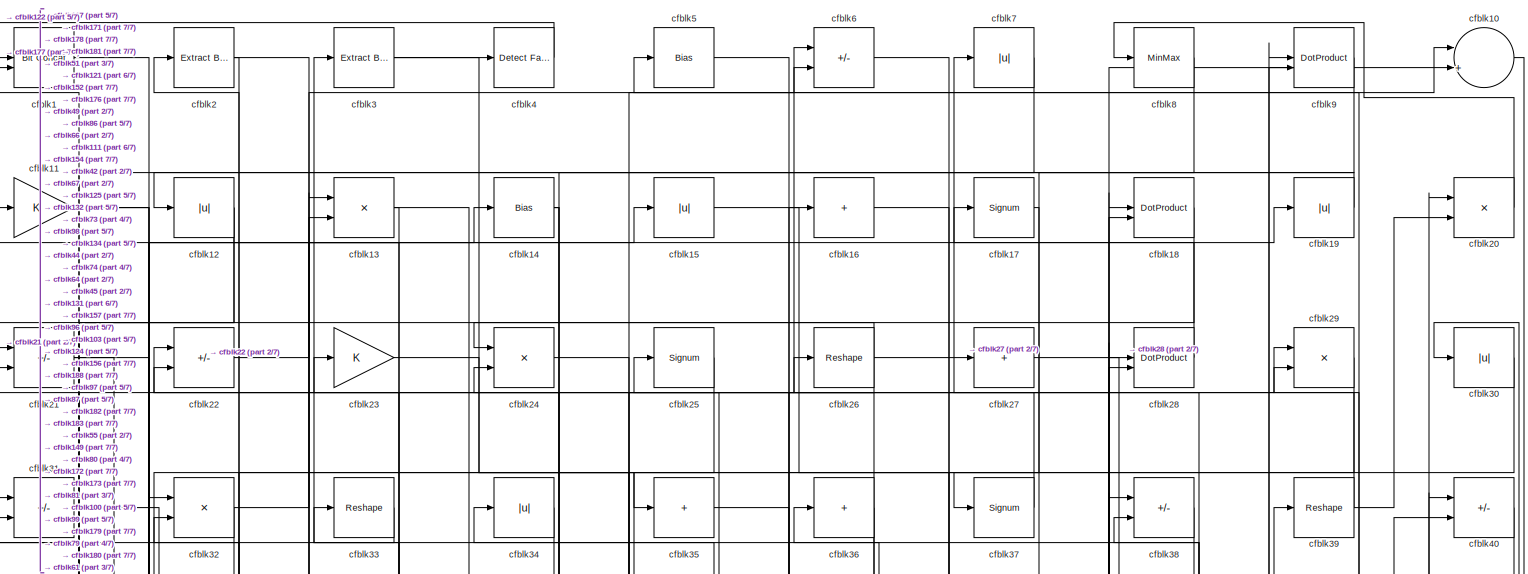
[diagram: root canvas - part 1/7, full width, top band]
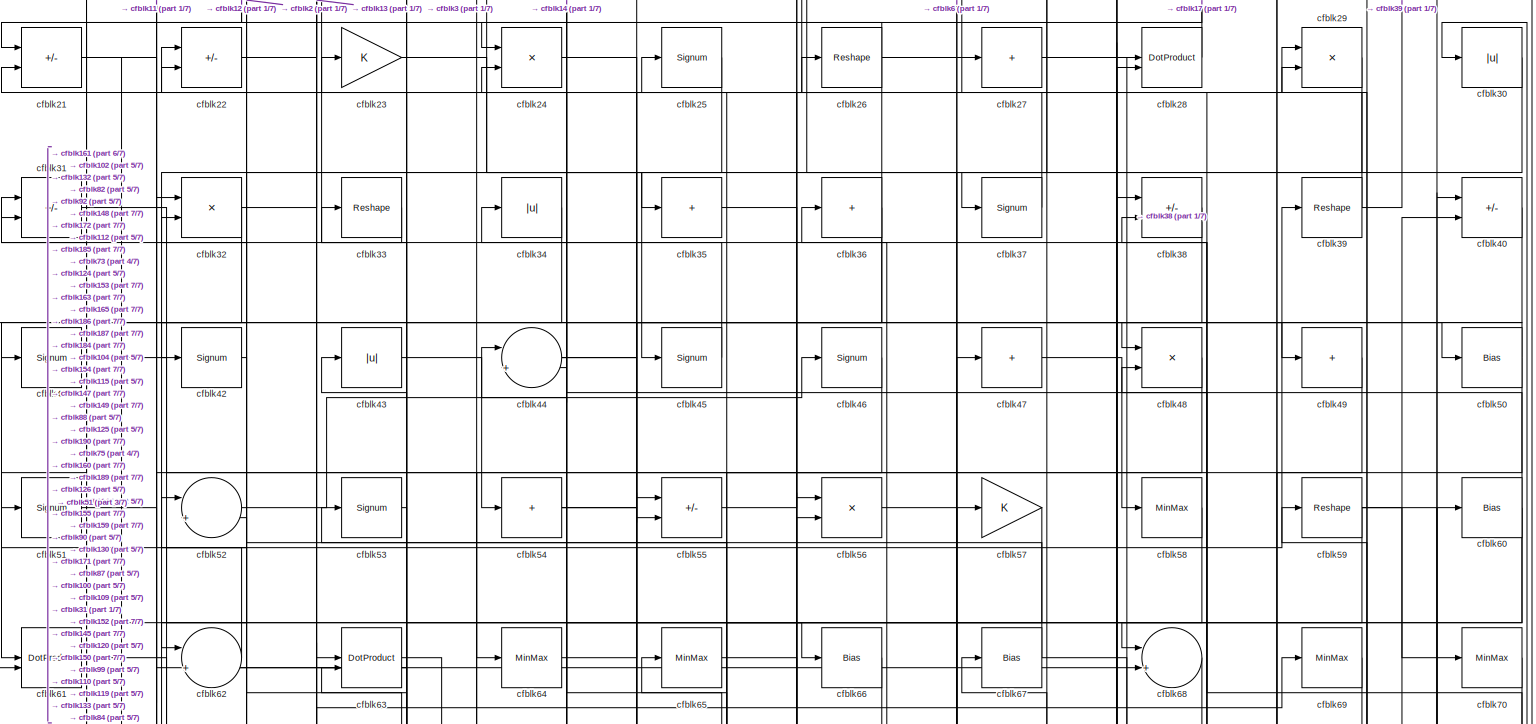
[diagram: root canvas - part 2/7, full width, top band]
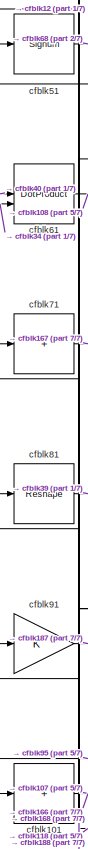
[diagram: root canvas - part 3/7, middle left region]
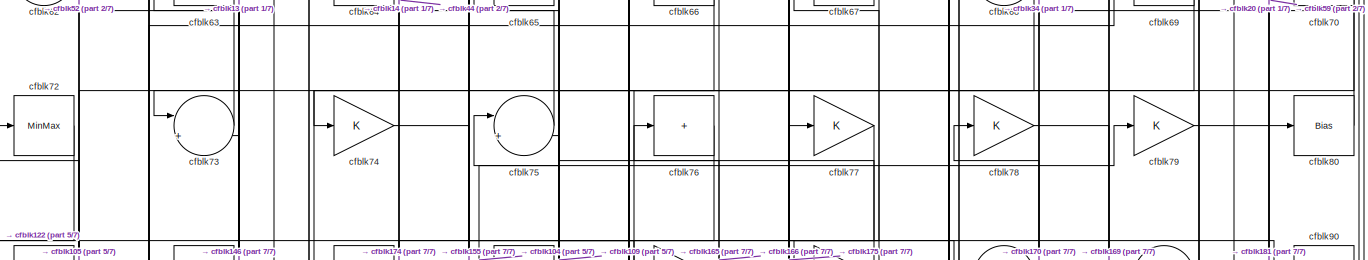
[diagram: root canvas - part 4/7, full width, middle band]
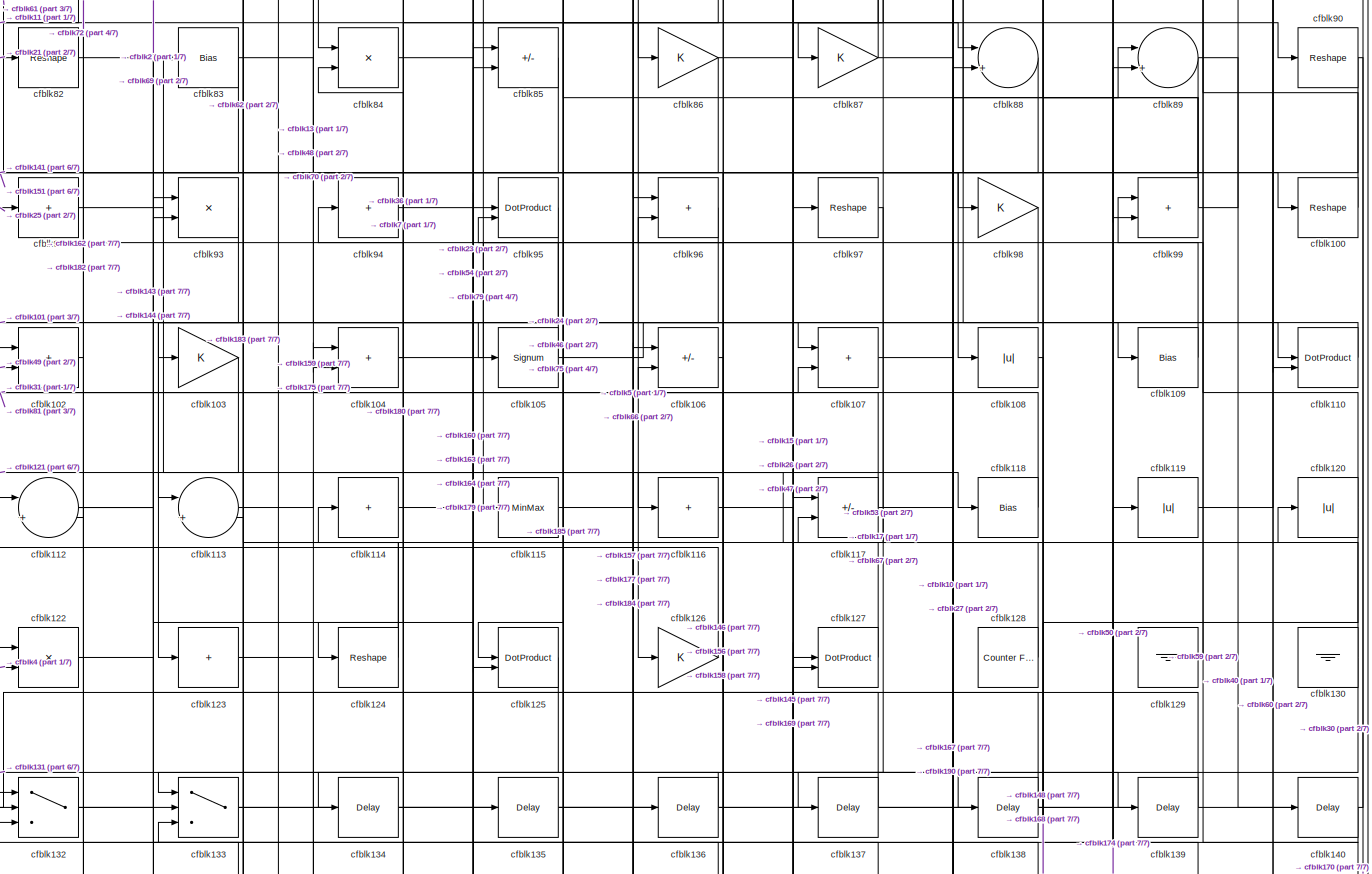
[diagram: root canvas - part 5/7, full width, middle band]
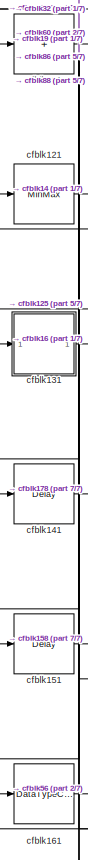
[diagram: root canvas - part 6/7, bottom left region]
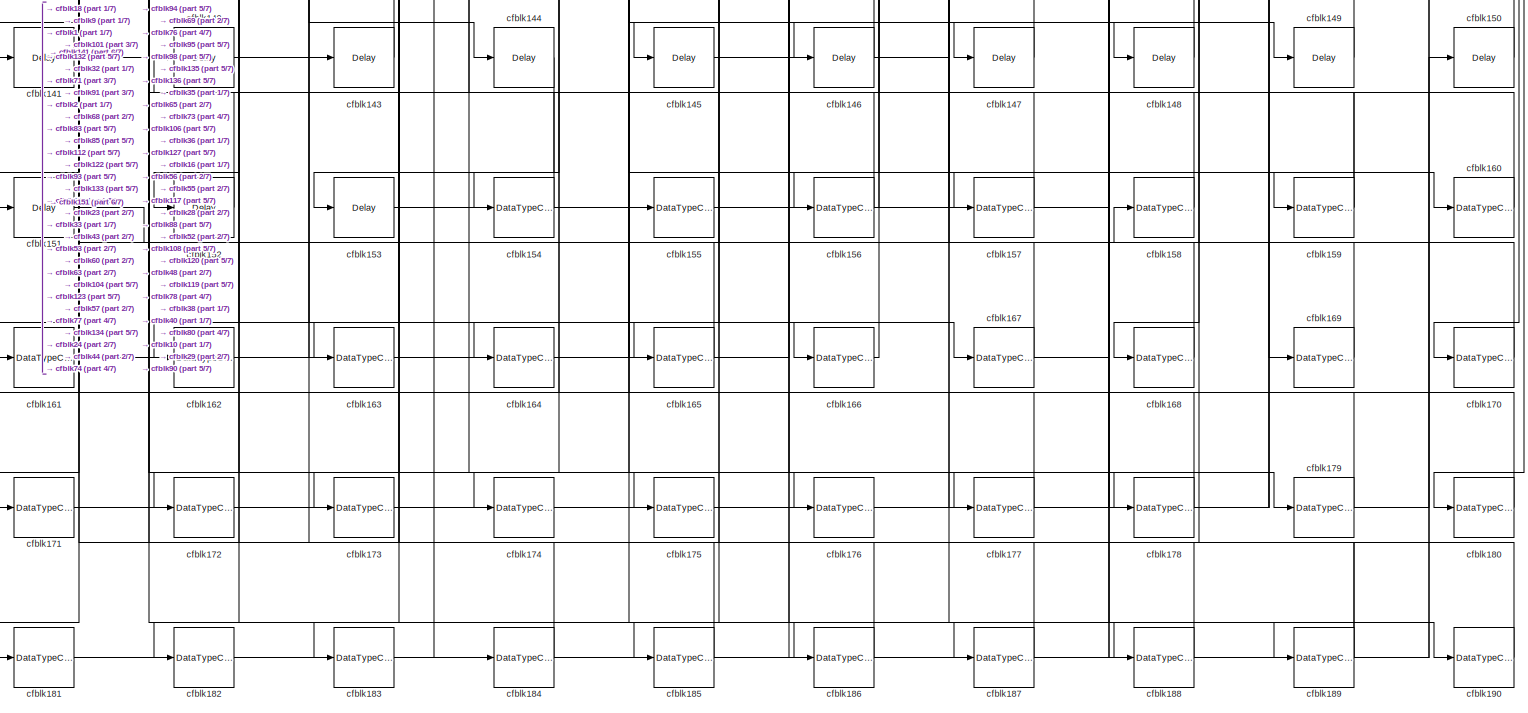
[diagram: root canvas - part 7/7, full width, bottom band]
MODEL slx_6f2c3fed47e3
KIND model
CONFIG AbsTol = auto
CONFIG EnableMultiTasking = off
CONFIG FixedStep = auto
CONFIG MaxStep = auto
CONFIG MinStep = auto
CONFIG RelTol = 1e-3
CONFIG SampleTimeConstraint = Unconstrained
CONFIG SolverName = VariableStepAuto
CONFIG StartTime = 0.0
CONFIG StopTime = 10.0
BLOCK [Reference] cfblk1  REF=hdlsllib/Logic and Bit
Operations/Bit Concat
  SourceBlock = hdlsllib/Logic and Bit\nOperations/Bit Concat
  SourceType = Bit Concat
BLOCK [Sum] cfblk10
  Inputs = |++
BLOCK [Reshape] cfblk100
BLOCK [Sum] cfblk101
  IconShape = rectangular
  Inputs = +
BLOCK [Sum] cfblk102
  IconShape = rectangular
BLOCK [Gain] cfblk103
BLOCK [Sum] cfblk104
  IconShape = rectangular
BLOCK [Signum] cfblk105
BLOCK [Sum] cfblk106
  IconShape = rectangular
  Inputs = +-
BLOCK [Sum] cfblk107
  IconShape = rectangular
BLOCK [Abs] cfblk108
  SaturateOnIntegerOverflow = off
BLOCK [Bias] cfblk109
  Bias = 0.0
  SaturateOnIntegerOverflow = off
BLOCK [Gain] cfblk11
BLOCK [DotProduct] cfblk110
  OutDataTypeStr = Inherit: Inherit via internal rule
BLOCK [Sum] cfblk111
  IconShape = rectangular
  Inputs = +
BLOCK [Sum] cfblk112
  Inputs = |++
BLOCK [Sum] cfblk113
  Inputs = |++
BLOCK [Sum] cfblk114
  IconShape = rectangular
  Inputs = +
BLOCK [MinMax] cfblk115
BLOCK [Sum] cfblk116
  IconShape = rectangular
  Inputs = +
BLOCK [Sum] cfblk117
  IconShape = rectangular
  Inputs = +-
BLOCK [Bias] cfblk118
  Bias = 0.0
  SaturateOnIntegerOverflow = off
BLOCK [Abs] cfblk119
  SaturateOnIntegerOverflow = off
BLOCK [Abs] cfblk12
  SaturateOnIntegerOverflow = off
BLOCK [Abs] cfblk120
  SaturateOnIntegerOverflow = off
BLOCK [MinMax] cfblk121
BLOCK [Product] cfblk122
  Inputs = */
  RndMeth = Zero
  SaturateOnIntegerOverflow = on
BLOCK [Sum] cfblk123
  IconShape = rectangular
  Inputs = +
BLOCK [Reshape] cfblk124
BLOCK [DotProduct] cfblk125
  OutDataTypeStr = Inherit: Inherit via internal rule
BLOCK [Gain] cfblk126
BLOCK [DotProduct] cfblk127
  OutDataTypeStr = Inherit: Inherit via internal rule
BLOCK [Reference] cfblk128  REF=hdlsllib/Sources/Counter
Free-Running
  SourceBlock = hdlsllib/Sources/Counter\nFree-Running
  SourceType = Counter Free-Running
BLOCK [Ground] cfblk129
BLOCK [Product] cfblk13
  Inputs = */
  RndMeth = Zero
  SaturateOnIntegerOverflow = on
BLOCK [Ground] cfblk130
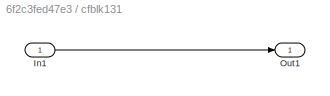
BLOCK [SubSystem] cfblk131
  LibrarySourceBlock = hdlsllib/Ports &\nSubsystems/Subsystem
BLOCK [Inport] cfblk131/In1
BLOCK [Outport] cfblk131/Out1
BLOCK [Switch] cfblk132
  InputSameDT = off
  SaturateOnIntegerOverflow = off
BLOCK [Switch] cfblk133
  InputSameDT = off
  SaturateOnIntegerOverflow = off
BLOCK [Delay] cfblk134
  InputPortMap = u0
  SampleTime = 1
BLOCK [Delay] cfblk135
  InputPortMap = u0
  SampleTime = 1
BLOCK [Delay] cfblk136
  InputPortMap = u0
  SampleTime = 1
BLOCK [Delay] cfblk137
  InputPortMap = u0
  SampleTime = 1
BLOCK [Delay] cfblk138
  InputPortMap = u0
  SampleTime = 1
BLOCK [Delay] cfblk139
  InputPortMap = u0
  SampleTime = 1
BLOCK [Bias] cfblk14
  Bias = 0.0
  SaturateOnIntegerOverflow = off
BLOCK [Delay] cfblk140
  InputPortMap = u0
  SampleTime = 1
BLOCK [Delay] cfblk141
  InputPortMap = u0
  SampleTime = 1
BLOCK [Delay] cfblk142
  InputPortMap = u0
  SampleTime = 1
BLOCK [Delay] cfblk143
  InputPortMap = u0
  SampleTime = 1
BLOCK [Delay] cfblk144
  InputPortMap = u0
  SampleTime = 1
BLOCK [Delay] cfblk145
  InputPortMap = u0
  SampleTime = 1
BLOCK [Delay] cfblk146
  InputPortMap = u0
  SampleTime = 1
BLOCK [Delay] cfblk147
  InputPortMap = u0
  SampleTime = 1
BLOCK [Delay] cfblk148
  InputPortMap = u0
  SampleTime = 1
BLOCK [Delay] cfblk149
  InputPortMap = u0
  SampleTime = 1
BLOCK [Abs] cfblk15
  SaturateOnIntegerOverflow = off
BLOCK [Delay] cfblk150
  InputPortMap = u0
  SampleTime = 1
BLOCK [Delay] cfblk151
  InputPortMap = u0
  SampleTime = 1
BLOCK [Delay] cfblk152
  InputPortMap = u0
  SampleTime = 1
BLOCK [Delay] cfblk153
  InputPortMap = u0
  SampleTime = 1
BLOCK [DataTypeConversion] cfblk154
  RndMeth = Floor
  SaturateOnIntegerOverflow = off
BLOCK [DataTypeConversion] cfblk155
  OutDataTypeStr = uint8
  RndMeth = Floor
  SaturateOnIntegerOverflow = off
BLOCK [DataTypeConversion] cfblk156
  RndMeth = Floor
  SaturateOnIntegerOverflow = off
BLOCK [DataTypeConversion] cfblk157
  OutDataTypeStr = uint8
  RndMeth = Floor
  SaturateOnIntegerOverflow = off
BLOCK [DataTypeConversion] cfblk158
  OutDataTypeStr = uint8
  RndMeth = Floor
  SaturateOnIntegerOverflow = off
BLOCK [DataTypeConversion] cfblk159
  RndMeth = Floor
  SaturateOnIntegerOverflow = off
BLOCK [Sum] cfblk16
  IconShape = rectangular
  Inputs = +
BLOCK [DataTypeConversion] cfblk160
  OutDataTypeStr = uint8
  RndMeth = Floor
  SaturateOnIntegerOverflow = off
BLOCK [DataTypeConversion] cfblk161
  OutDataTypeStr = uint8
  RndMeth = Floor
  SaturateOnIntegerOverflow = off
BLOCK [DataTypeConversion] cfblk162
  OutDataTypeStr = uint8
  RndMeth = Floor
  SaturateOnIntegerOverflow = off
BLOCK [DataTypeConversion] cfblk163
  OutDataTypeStr = uint8
  RndMeth = Floor
  SaturateOnIntegerOverflow = off
BLOCK [DataTypeConversion] cfblk164
  OutDataTypeStr = uint8
  RndMeth = Floor
  SaturateOnIntegerOverflow = off
BLOCK [DataTypeConversion] cfblk165
  OutDataTypeStr = uint8
  RndMeth = Floor
  SaturateOnIntegerOverflow = off
BLOCK [DataTypeConversion] cfblk166
  OutDataTypeStr = uint8
  RndMeth = Floor
  SaturateOnIntegerOverflow = off
BLOCK [DataTypeConversion] cfblk167
  RndMeth = Floor
  SaturateOnIntegerOverflow = off
BLOCK [DataTypeConversion] cfblk168
  OutDataTypeStr = uint8
  RndMeth = Floor
  SaturateOnIntegerOverflow = off
BLOCK [DataTypeConversion] cfblk169
  OutDataTypeStr = uint8
  RndMeth = Floor
  SaturateOnIntegerOverflow = off
BLOCK [Signum] cfblk17
BLOCK [DataTypeConversion] cfblk170
  OutDataTypeStr = uint8
  RndMeth = Floor
  SaturateOnIntegerOverflow = off
BLOCK [DataTypeConversion] cfblk171
  OutDataTypeStr = uint8
  RndMeth = Floor
  SaturateOnIntegerOverflow = off
BLOCK [DataTypeConversion] cfblk172
  OutDataTypeStr = uint8
  RndMeth = Floor
  SaturateOnIntegerOverflow = off
BLOCK [DataTypeConversion] cfblk173
  OutDataTypeStr = uint8
  RndMeth = Floor
  SaturateOnIntegerOverflow = off
BLOCK [DataTypeConversion] cfblk174
  OutDataTypeStr = uint8
  RndMeth = Floor
  SaturateOnIntegerOverflow = off
BLOCK [DataTypeConversion] cfblk175
  OutDataTypeStr = uint8
  RndMeth = Floor
  SaturateOnIntegerOverflow = off
BLOCK [DataTypeConversion] cfblk176
  OutDataTypeStr = uint8
  RndMeth = Floor
  SaturateOnIntegerOverflow = off
BLOCK [DataTypeConversion] cfblk177
  OutDataTypeStr = uint8
  RndMeth = Floor
  SaturateOnIntegerOverflow = off
BLOCK [DataTypeConversion] cfblk178
  OutDataTypeStr = uint8
  RndMeth = Floor
  SaturateOnIntegerOverflow = off
BLOCK [DataTypeConversion] cfblk179
  RndMeth = Floor
  SaturateOnIntegerOverflow = off
BLOCK [DotProduct] cfblk18
  OutDataTypeStr = Inherit: Inherit via internal rule
BLOCK [DataTypeConversion] cfblk180
  OutDataTypeStr = uint8
  RndMeth = Floor
  SaturateOnIntegerOverflow = off
BLOCK [DataTypeConversion] cfblk181
  OutDataTypeStr = uint8
  RndMeth = Floor
  SaturateOnIntegerOverflow = off
BLOCK [DataTypeConversion] cfblk182
  OutDataTypeStr = uint8
  RndMeth = Floor
  SaturateOnIntegerOverflow = off
BLOCK [DataTypeConversion] cfblk183
  OutDataTypeStr = uint8
  RndMeth = Floor
  SaturateOnIntegerOverflow = off
BLOCK [DataTypeConversion] cfblk184
  RndMeth = Floor
  SaturateOnIntegerOverflow = off
BLOCK [DataTypeConversion] cfblk185
  OutDataTypeStr = uint8
  RndMeth = Floor
  SaturateOnIntegerOverflow = off
BLOCK [DataTypeConversion] cfblk186
  OutDataTypeStr = uint8
  RndMeth = Floor
  SaturateOnIntegerOverflow = off
BLOCK [DataTypeConversion] cfblk187
  RndMeth = Floor
  SaturateOnIntegerOverflow = off
BLOCK [DataTypeConversion] cfblk188
  OutDataTypeStr = uint8
  RndMeth = Floor
  SaturateOnIntegerOverflow = off
BLOCK [DataTypeConversion] cfblk189
  RndMeth = Floor
  SaturateOnIntegerOverflow = off
BLOCK [Abs] cfblk19
  SaturateOnIntegerOverflow = off
BLOCK [DataTypeConversion] cfblk190
  OutDataTypeStr = uint8
  RndMeth = Floor
  SaturateOnIntegerOverflow = off
BLOCK [Reference] cfblk2  REF=simulink/Logic and Bit
Operations/Extract Bits
  LibrarySourceBlock = hdlsllib/Logic and Bit\nOperations/Extract Bits
  SourceBlock = simulink/Logic and Bit\nOperations/Extract Bits
  SourceType = Extract Bits
BLOCK [Product] cfblk20
  Inputs = */
  RndMeth = Zero
  SaturateOnIntegerOverflow = on
BLOCK [Sum] cfblk21
  IconShape = rectangular
  Inputs = +-
BLOCK [Sum] cfblk22
  IconShape = rectangular
  Inputs = +-
BLOCK [Gain] cfblk23
BLOCK [Product] cfblk24
  Inputs = */
  RndMeth = Zero
  SaturateOnIntegerOverflow = on
BLOCK [Signum] cfblk25
BLOCK [Reshape] cfblk26
BLOCK [Sum] cfblk27
  IconShape = rectangular
  Inputs = +
BLOCK [DotProduct] cfblk28
  OutDataTypeStr = Inherit: Inherit via internal rule
BLOCK [Product] cfblk29
  Inputs = */
  RndMeth = Zero
  SaturateOnIntegerOverflow = on
BLOCK [Reference] cfblk3  REF=simulink/Logic and Bit
Operations/Extract Bits
  LibrarySourceBlock = hdlsllib/Logic and Bit\nOperations/Extract Bits
  SourceBlock = simulink/Logic and Bit\nOperations/Extract Bits
  SourceType = Extract Bits
BLOCK [Abs] cfblk30
  SaturateOnIntegerOverflow = off
BLOCK [Sum] cfblk31
  IconShape = rectangular
  Inputs = +-
BLOCK [Product] cfblk32
  Inputs = */
  RndMeth = Zero
  SaturateOnIntegerOverflow = on
BLOCK [Reshape] cfblk33
BLOCK [Abs] cfblk34
  SaturateOnIntegerOverflow = off
BLOCK [Sum] cfblk35
  IconShape = rectangular
  Inputs = +
BLOCK [Sum] cfblk36
  IconShape = rectangular
  Inputs = +
BLOCK [Signum] cfblk37
BLOCK [Sum] cfblk38
  IconShape = rectangular
  Inputs = +-
BLOCK [Reshape] cfblk39
BLOCK [Reference] cfblk4  REF=hdlsllib/Logic and Bit
Operations/Detect Fall
Negative
  SourceBlock = hdlsllib/Logic and Bit\nOperations/Detect Fall\nNegative
  SourceType = Detect Fall Negative
BLOCK [Sum] cfblk40
  IconShape = rectangular
  Inputs = +-
BLOCK [Signum] cfblk41
BLOCK [Signum] cfblk42
BLOCK [Abs] cfblk43
  SaturateOnIntegerOverflow = off
BLOCK [Sum] cfblk44
  Inputs = |++
BLOCK [Signum] cfblk45
BLOCK [Signum] cfblk46
BLOCK [Sum] cfblk47
  IconShape = rectangular
  Inputs = +
BLOCK [Product] cfblk48
  Inputs = */
  RndMeth = Zero
  SaturateOnIntegerOverflow = on
BLOCK [Sum] cfblk49
  IconShape = rectangular
  Inputs = +
BLOCK [Bias] cfblk5
  Bias = 0.0
  SaturateOnIntegerOverflow = off
BLOCK [Bias] cfblk50
  Bias = 0.0
  SaturateOnIntegerOverflow = off
BLOCK [Signum] cfblk51
BLOCK [Sum] cfblk52
  Inputs = |++
BLOCK [Signum] cfblk53
BLOCK [Sum] cfblk54
  IconShape = rectangular
  Inputs = +
BLOCK [Sum] cfblk55
  IconShape = rectangular
  Inputs = +-
BLOCK [Product] cfblk56
  Inputs = */
  RndMeth = Zero
  SaturateOnIntegerOverflow = on
BLOCK [Gain] cfblk57
BLOCK [MinMax] cfblk58
BLOCK [Reshape] cfblk59
BLOCK [Sum] cfblk6
  IconShape = rectangular
  Inputs = +-
BLOCK [Bias] cfblk60
  Bias = 0.0
  SaturateOnIntegerOverflow = off
BLOCK [DotProduct] cfblk61
  OutDataTypeStr = Inherit: Inherit via internal rule
BLOCK [Sum] cfblk62
  Inputs = |++
BLOCK [DotProduct] cfblk63
  OutDataTypeStr = Inherit: Inherit via internal rule
BLOCK [MinMax] cfblk64
BLOCK [MinMax] cfblk65
BLOCK [Bias] cfblk66
  Bias = 0.0
  SaturateOnIntegerOverflow = off
BLOCK [Bias] cfblk67
  Bias = 0.0
  SaturateOnIntegerOverflow = off
BLOCK [Sum] cfblk68
  Inputs = |++
BLOCK [MinMax] cfblk69
BLOCK [Abs] cfblk7
  SaturateOnIntegerOverflow = off
BLOCK [MinMax] cfblk70
BLOCK [Sum] cfblk71
  IconShape = rectangular
  Inputs = +
BLOCK [MinMax] cfblk72
BLOCK [Sum] cfblk73
  Inputs = |++
BLOCK [Gain] cfblk74
BLOCK [Sum] cfblk75
  Inputs = |++
BLOCK [Sum] cfblk76
  IconShape = rectangular
  Inputs = +
BLOCK [Gain] cfblk77
BLOCK [Gain] cfblk78
BLOCK [Gain] cfblk79
BLOCK [MinMax] cfblk8
BLOCK [Bias] cfblk80
  Bias = 0.0
  SaturateOnIntegerOverflow = off
BLOCK [Reshape] cfblk81
BLOCK [Reshape] cfblk82
BLOCK [Bias] cfblk83
  Bias = 0.0
  SaturateOnIntegerOverflow = off
BLOCK [Product] cfblk84
  Inputs = */
  RndMeth = Zero
  SaturateOnIntegerOverflow = on
BLOCK [Sum] cfblk85
  IconShape = rectangular
  Inputs = +-
BLOCK [Gain] cfblk86
BLOCK [Gain] cfblk87
BLOCK [Sum] cfblk88
  Inputs = |++
BLOCK [Sum] cfblk89
  Inputs = |++
BLOCK [DotProduct] cfblk9
  OutDataTypeStr = Inherit: Inherit via internal rule
BLOCK [Reshape] cfblk90
BLOCK [Gain] cfblk91
BLOCK [Sum] cfblk92
  IconShape = rectangular
  Inputs = +
BLOCK [Product] cfblk93
  Inputs = */
  RndMeth = Zero
  SaturateOnIntegerOverflow = on
BLOCK [Sum] cfblk94
  IconShape = rectangular
  Inputs = +
BLOCK [DotProduct] cfblk95
  OutDataTypeStr = Inherit: Inherit via internal rule
BLOCK [Sum] cfblk96
  IconShape = rectangular
BLOCK [Reshape] cfblk97
BLOCK [Gain] cfblk98
BLOCK [Sum] cfblk99
  IconShape = rectangular
LINE cfblk100:1 -> cfblk5:1
NET cfblk101:1 -> cfblk107:2, cfblk166:1
LINE cfblk102:1 -> cfblk112:2
LINE cfblk103:1 -> cfblk121:1
NET cfblk104:1 -> cfblk79:1, cfblk84:2
NET cfblk105:1 -> cfblk107:1, cfblk72:1
LINE cfblk106:1 -> cfblk156:1
LINE cfblk107:1 -> cfblk89:1
LINE cfblk108:1 -> cfblk168:1
LINE cfblk109:1 -> cfblk75:1
LINE cfblk10:1 -> cfblk180:1
LINE cfblk110:1 -> cfblk102:1
LINE cfblk111:1 -> cfblk19:1
NET cfblk112:1 -> cfblk144:1, cfblk69:1, cfblk83:1
LINE cfblk113:1 -> cfblk118:1
LINE cfblk114:1 -> cfblk47:1
LINE cfblk115:1 -> cfblk138:1
LINE cfblk116:1 -> cfblk139:1
NET cfblk117:1 -> cfblk190:1, cfblk31:1
LINE cfblk118:1 -> cfblk81:1
LINE cfblk119:1 -> cfblk60:1
NET cfblk11:1 -> cfblk49:1, cfblk86:1
NET cfblk120:1 -> cfblk148:1, cfblk59:1
LINE cfblk121:1 -> cfblk14:1
LINE cfblk122:1 -> cfblk143:1
LINE cfblk123:1 -> cfblk175:1
NET cfblk124:1 -> cfblk11:1, cfblk62:2
LINE cfblk125:1 -> cfblk131:1
LINE cfblk126:1 -> cfblk112:1
LINE cfblk127:1 -> cfblk117:2
LINE cfblk128:1 -> cfblk114:1
LINE cfblk129:1 -> cfblk99:1
NET cfblk12:1 -> cfblk21:1, cfblk51:1
NET cfblk130:1 -> cfblk183:1, cfblk67:1
LINE cfblk131/In1:1 -> cfblk131/Out1:1
LINE cfblk131:1 -> cfblk16:1
NET cfblk132:1 -> cfblk10:1, cfblk15:1
NET cfblk133:1 -> cfblk30:1, cfblk89:2
LINE cfblk134:1 -> cfblk160:1
LINE cfblk135:1 -> cfblk177:1
LINE cfblk136:1 -> cfblk133:1
LINE cfblk137:1 -> cfblk113:2
LINE cfblk138:1 -> cfblk96:2
LINE cfblk139:1 -> cfblk93:1
NET cfblk13:1 -> cfblk73:1, cfblk98:1
LINE cfblk140:1 -> cfblk132:3
LINE cfblk141:1 -> cfblk178:1
LINE cfblk142:1 -> cfblk164:1
LINE cfblk143:1 -> cfblk133:2
LINE cfblk144:1 -> cfblk173:1
LINE cfblk145:1 -> cfblk127:2
LINE cfblk146:1 -> cfblk73:2
LINE cfblk147:1 -> cfblk55:1
LINE cfblk148:1 -> cfblk52:2
LINE cfblk149:1 -> cfblk38:2
NET cfblk14:1 -> cfblk44:2, cfblk74:1
LINE cfblk150:1 -> cfblk29:2
LINE cfblk151:1 -> cfblk158:1
LINE cfblk152:1 -> cfblk32:1
LINE cfblk153:1 -> cfblk28:2
NET cfblk154:1 -> cfblk186:1, cfblk2:1
LINE cfblk155:1 -> cfblk57:1
NET cfblk156:1 -> cfblk33:1, cfblk36:1
LINE cfblk157:1 -> cfblk106:1
LINE cfblk158:1 -> cfblk106:2
NET cfblk159:1 -> cfblk104:1, cfblk133:3
LINE cfblk15:1 -> cfblk97:1
LINE cfblk160:1 -> cfblk56:1
LINE cfblk161:1 -> cfblk56:2
LINE cfblk162:1 -> cfblk93:2
LINE cfblk163:1 -> cfblk85:1
LINE cfblk164:1 -> cfblk85:2
LINE cfblk165:1 -> cfblk23:1
LINE cfblk166:1 -> cfblk76:1
NET cfblk167:1 -> cfblk88:2, cfblk95:2
LINE cfblk168:1 -> cfblk71:1
LINE cfblk169:1 -> cfblk127:1
LINE cfblk16:1 -> cfblk188:1
LINE cfblk170:1 -> cfblk78:1
LINE cfblk171:1 -> cfblk28:1
LINE cfblk172:1 -> cfblk9:1
LINE cfblk173:1 -> cfblk9:2
LINE cfblk174:1 -> cfblk119:1
LINE cfblk175:1 -> cfblk77:1
LINE cfblk176:1 -> cfblk38:1
LINE cfblk177:1 -> cfblk1:1
LINE cfblk178:1 -> cfblk1:2
NET cfblk179:1 -> cfblk40:1, cfblk95:1
LINE cfblk17:1 -> cfblk87:1
LINE cfblk180:1 -> cfblk94:1
LINE cfblk181:1 -> cfblk80:1
LINE cfblk182:1 -> cfblk18:1
LINE cfblk183:1 -> cfblk18:2
NET cfblk184:1 -> cfblk132:1, cfblk136:1
LINE cfblk185:1 -> cfblk63:1
LINE cfblk186:1 -> cfblk63:2
NET cfblk187:1 -> cfblk150:1, cfblk43:1
LINE cfblk188:1 -> cfblk91:1
NET cfblk189:1 -> cfblk142:1, cfblk48:2
LINE cfblk18:1 -> cfblk181:1
LINE cfblk190:1 -> cfblk65:1
LINE cfblk19:1 -> cfblk12:1
LINE cfblk1:1 -> cfblk176:1
LINE cfblk20:1 -> cfblk8:1
NET cfblk21:1 -> cfblk132:2, cfblk82:1
LINE cfblk22:1 -> cfblk13:2
LINE cfblk23:1 -> cfblk115:1
LINE cfblk24:1 -> cfblk147:1
LINE cfblk25:1 -> cfblk92:1
NET cfblk26:1 -> cfblk21:2, cfblk24:1, cfblk90:1
LINE cfblk27:1 -> cfblk100:1
LINE cfblk28:1 -> cfblk17:1
LINE cfblk29:1 -> cfblk172:1
NET cfblk2:1 -> cfblk125:2, cfblk42:1
LINE cfblk30:1 -> cfblk45:1
LINE cfblk31:1 -> cfblk66:1
NET cfblk32:1 -> cfblk111:1, cfblk13:1
LINE cfblk33:1 -> cfblk32:2
LINE cfblk34:1 -> cfblk61:2
LINE cfblk35:1 -> cfblk157:1
NET cfblk36:1 -> cfblk103:1, cfblk124:1, cfblk6:1
LINE cfblk37:1 -> cfblk7:1
LINE cfblk38:1 -> cfblk55:2
NET cfblk39:1 -> cfblk20:2, cfblk22:1
NET cfblk3:1 -> cfblk35:1, cfblk4:1
LINE cfblk40:1 -> cfblk61:1
LINE cfblk41:1 -> cfblk64:1
LINE cfblk42:1 -> cfblk62:1
LINE cfblk43:1 -> cfblk54:1
NET cfblk44:1 -> cfblk149:1, cfblk50:1
LINE cfblk45:1 -> cfblk3:1
LINE cfblk46:1 -> cfblk125:1
LINE cfblk47:1 -> cfblk58:1
LINE cfblk48:1 -> cfblk104:2
LINE cfblk49:1 -> cfblk102:2
LINE cfblk4:1 -> cfblk122:2
NET cfblk50:1 -> cfblk48:1, cfblk99:2
LINE cfblk51:1 -> cfblk68:2
LINE cfblk52:1 -> cfblk46:1
LINE cfblk53:1 -> cfblk163:1
NET cfblk54:1 -> cfblk26:1, cfblk88:1
LINE cfblk55:1 -> cfblk29:1
LINE cfblk56:1 -> cfblk159:1
LINE cfblk57:1 -> cfblk154:1
LINE cfblk58:1 -> cfblk68:1
NET cfblk59:1 -> cfblk110:2, cfblk70:1, cfblk75:2
LINE cfblk5:1 -> cfblk96:1
NET cfblk60:1 -> cfblk153:1, cfblk161:1, cfblk22:2
LINE cfblk61:1 -> cfblk108:1
LINE cfblk62:1 -> cfblk41:1
LINE cfblk63:1 -> cfblk184:1
LINE cfblk64:1 -> cfblk6:2
LINE cfblk65:1 -> cfblk189:1
LINE cfblk66:1 -> cfblk126:1
NET cfblk67:1 -> cfblk109:1, cfblk31:2
LINE cfblk68:1 -> cfblk152:1
LINE cfblk69:1 -> cfblk145:1
LINE cfblk6:1 -> cfblk27:1
LINE cfblk70:1 -> cfblk84:1
LINE cfblk71:1 -> cfblk167:1
LINE cfblk72:1 -> cfblk122:1
LINE cfblk73:1 -> cfblk52:1
LINE cfblk74:1 -> cfblk155:1
LINE cfblk75:1 -> cfblk44:1
LINE cfblk76:1 -> cfblk165:1
LINE cfblk77:1 -> cfblk174:1
LINE cfblk78:1 -> cfblk169:1
LINE cfblk79:1 -> cfblk20:1
LINE cfblk7:1 -> cfblk134:1
LINE cfblk80:1 -> cfblk34:1
LINE cfblk81:1 -> cfblk39:1
LINE cfblk82:1 -> cfblk120:1
NET cfblk83:1 -> cfblk105:1, cfblk182:1
LINE cfblk84:1 -> cfblk135:1
LINE cfblk85:1 -> cfblk162:1
NET cfblk86:1 -> cfblk117:1, cfblk151:1
NET cfblk87:1 -> cfblk10:2, cfblk53:1
LINE cfblk88:1 -> cfblk141:1
NET cfblk89:1 -> cfblk116:1, cfblk140:1
LINE cfblk8:1 -> cfblk37:1
NET cfblk90:1 -> cfblk146:1, cfblk170:1
LINE cfblk91:1 -> cfblk187:1
LINE cfblk92:1 -> cfblk110:1
LINE cfblk93:1 -> cfblk123:1
LINE cfblk94:1 -> cfblk179:1
LINE cfblk95:1 -> cfblk101:1
LINE cfblk96:1 -> cfblk113:1
LINE cfblk97:1 -> cfblk137:1
LINE cfblk98:1 -> cfblk185:1
NET cfblk99:1 -> cfblk24:2, cfblk25:1, cfblk40:2
LINE cfblk9:1 -> cfblk171:1
note: NET lines group one-source signal fan-out (src -> all destinations, sorted); 1:1 wires keep LINE
